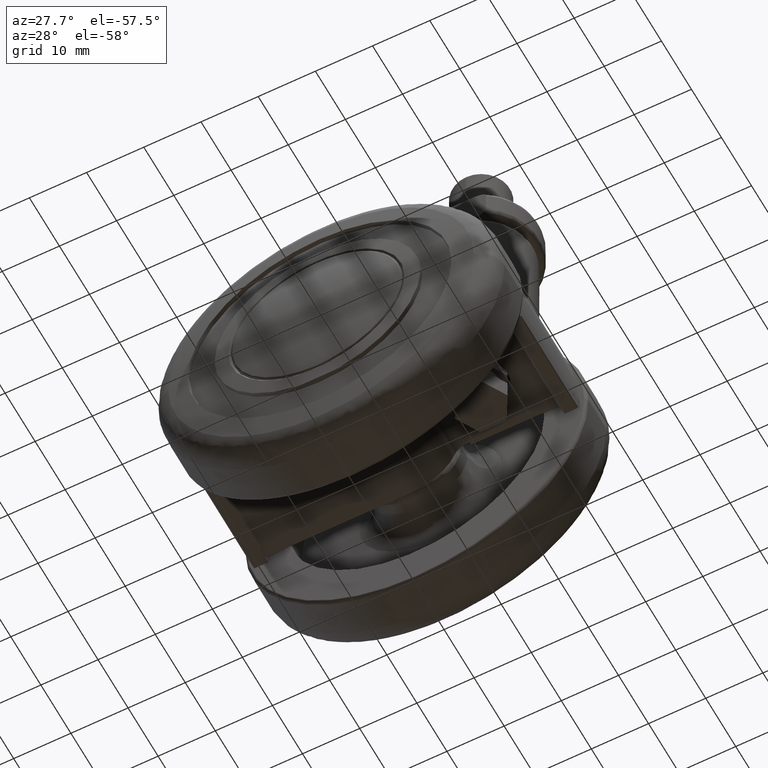
[diagram: clean part render]
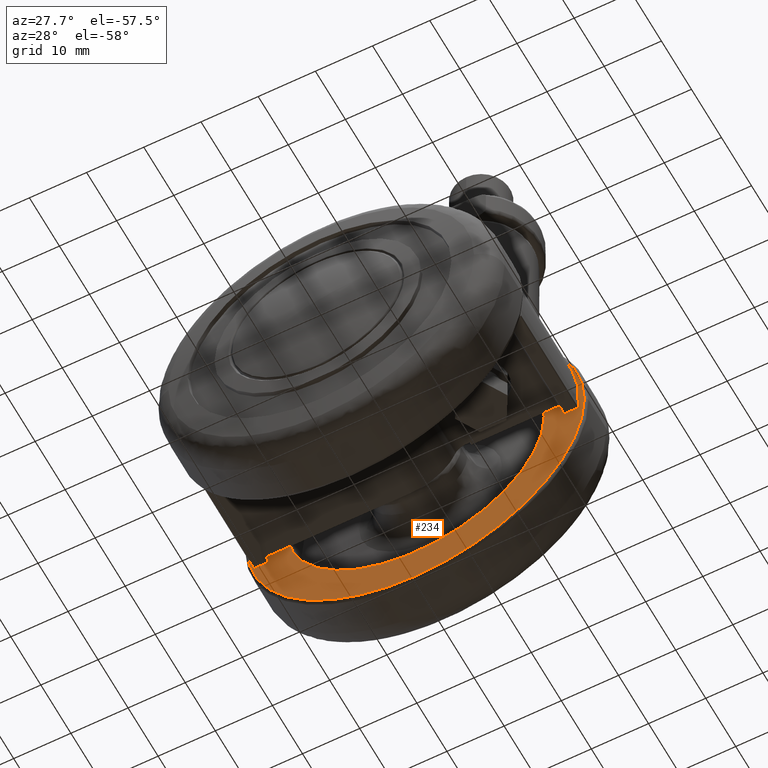
[diagram: same view with one face highlighted and labeled with its STEP entity id]
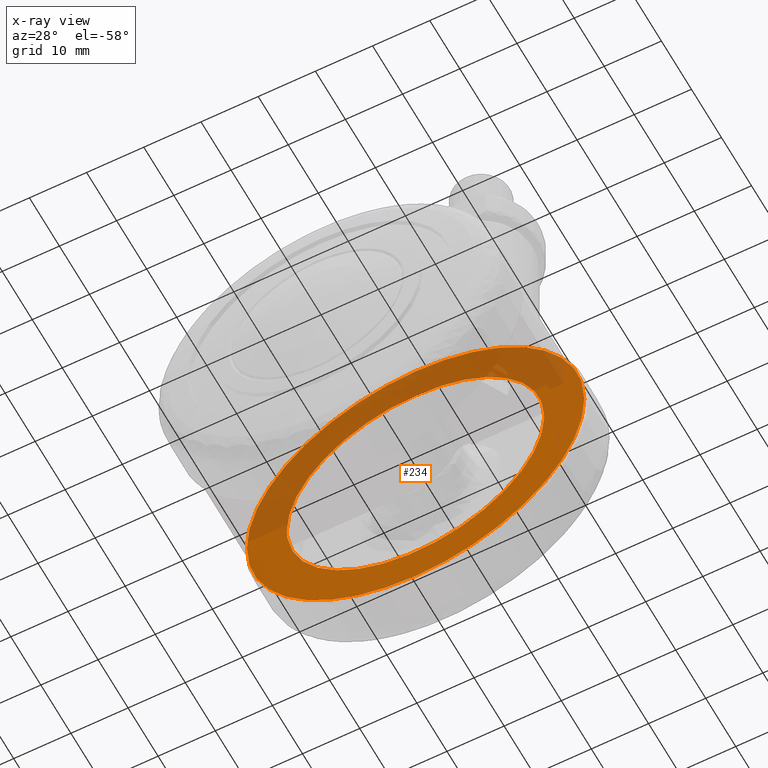
[diagram: x-ray of the same camera — body ghosted, the highlighted face saturated]
A machine part, auxiliary view. The second image highlights one B-rep face of the part: STEP entity #234.
The next image is the same camera in x-ray: the body ghosted, the highlighted face saturated — about 43% of this face is hidden behind the body in this view.
In plain terms, the highlighted planar face has unit normal (0, 1, 0).
Its self-contained STEP definition (entity closure, byte-faithful):
#234=ADVANCED_FACE('',(#1076,#1077),#1075,.F.);
#1075=PLANE('',#3547);
#1076=FACE_OUTER_BOUND('',#3548,.T.);
#1077=FACE_BOUND('',#3549,.T.);
#3544=CARTESIAN_POINT('',(-6.78500000000E+01,-6.10954988233E+01,2.00000000000E+00));
#3545=DIRECTION('',(0.00000000000E+00,0.00000000000E+00,1.00000000000E+00));
#3546=DIRECTION('',(1.00000000000E+00,0.00000000000E+00,0.00000000000E+00));
#3547=AXIS2_PLACEMENT_3D('',#3544,#3545,#3546);
#3548=EDGE_LOOP('',(#4875,#4876));
#3549=EDGE_LOOP('',(#4877,#4878,#4879));
#4875=ORIENTED_EDGE('',*,*,#5419,.T.);
#4876=ORIENTED_EDGE('',*,*,#5420,.T.);
#4877=ORIENTED_EDGE('',*,*,#5421,.F.);
#4878=ORIENTED_EDGE('',*,*,#5422,.F.);
#4879=ORIENTED_EDGE('',*,*,#5423,.F.);
#5419=EDGE_CURVE('',#6904,#6905,#6906,.T.);
#5420=EDGE_CURVE('',#6905,#6904,#6912,.T.);
#5421=EDGE_CURVE('',#6918,#6919,#6920,.T.);
#5422=EDGE_CURVE('',#6926,#6918,#6927,.T.);
#5423=EDGE_CURVE('',#6919,#6926,#6933,.T.);
#6904=VERTEX_POINT('',#9151);
#6905=VERTEX_POINT('',#9152);
#6906=CIRCLE('',#9156,2.95000000000E+01);
#6912=CIRCLE('',#9160,2.95000000000E+01);
#6918=VERTEX_POINT('',#9161);
#6919=VERTEX_POINT('',#9162);
#6920=CIRCLE('',#9166,2.25000000000E+01);
#6926=VERTEX_POINT('',#9167);
#6927=CIRCLE('',#9171,2.25000000000E+01);
#6933=CIRCLE('',#9175,2.25000000000E+01);
#9151=CARTESIAN_POINT('',(2.95000000000E+01,-3.07354836874E-17,2.00000000000E+00));
#9152=CARTESIAN_POINT('',(-2.95000000000E+01,-8.28966525053E-15,2.00000000000E+00));
#9153=CARTESIAN_POINT('',(0.00000000000E+00,0.00000000000E+00,2.00000000000E+00));
#9154=DIRECTION('',(0.00000000000E+00,0.00000000000E+00,-1.00000000000E+00));
#9155=DIRECTION('',(1.00000000000E+00,-1.23502516185E-16,-0.00000000000E+00));
#9156=AXIS2_PLACEMENT_3D('',#9153,#9154,#9155);
#9157=CARTESIAN_POINT('',(0.00000000000E+00,0.00000000000E+00,2.00000000000E+00));
#9158=DIRECTION('',(0.00000000000E+00,0.00000000000E+00,-1.00000000000E+00));
#9159=DIRECTION('',(1.00000000000E+00,-1.23502516185E-16,-0.00000000000E+00));
#9160=AXIS2_PLACEMENT_3D('',#9157,#9158,#9159);
#9161=CARTESIAN_POINT('',(-2.25000000000E+01,-8.03386126938E-08,2.00000000000E+00));
#9162=CARTESIAN_POINT('',(-2.23970834024E+01,2.14957090231E+00,2.00000000000E+00));
#9163=CARTESIAN_POINT('',(0.00000000000E+00,0.00000000000E+00,2.00000000000E+00));
#9164=DIRECTION('',(0.00000000000E+00,0.00000000000E+00,-1.00000000000E+00));
#9165=DIRECTION('',(-9.95425928997E-01,9.55364845470E-02,0.00000000000E+00));
#9166=AXIS2_PLACEMENT_3D('',#9163,#9164,#9165);
#9167=CARTESIAN_POINT('',(2.24999999999E+01,-5.45503734179E-05,2.00000000000E+00));
#9168=CARTESIAN_POINT('',(0.00000000000E+00,0.00000000000E+00,2.00000000000E+00));
#9169=DIRECTION('',(0.00000000000E+00,0.00000000000E+00,-1.00000000000E+00));
#9170=DIRECTION('',(-9.95425928997E-01,9.55364845470E-02,0.00000000000E+00));
#9171=AXIS2_PLACEMENT_3D('',#9168,#9169,#9170);
#9172=CARTESIAN_POINT('',(0.00000000000E+00,0.00000000000E+00,2.00000000000E+00));
#9173=DIRECTION('',(0.00000000000E+00,0.00000000000E+00,-1.00000000000E+00));
#9174=DIRECTION('',(-9.95425928997E-01,9.55364845470E-02,0.00000000000E+00));
#9175=AXIS2_PLACEMENT_3D('',#9172,#9173,#9174);